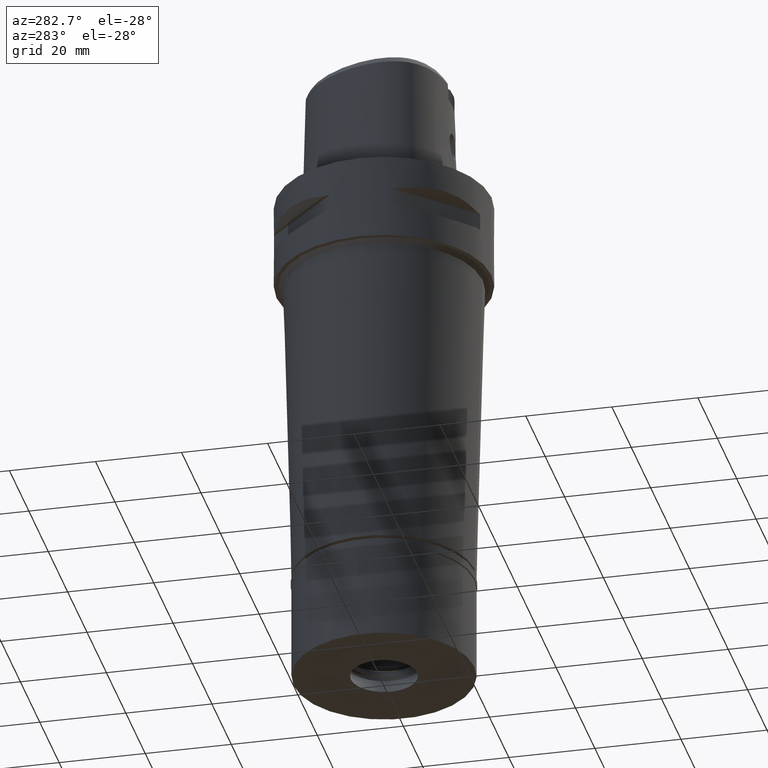
[diagram: clean part render]
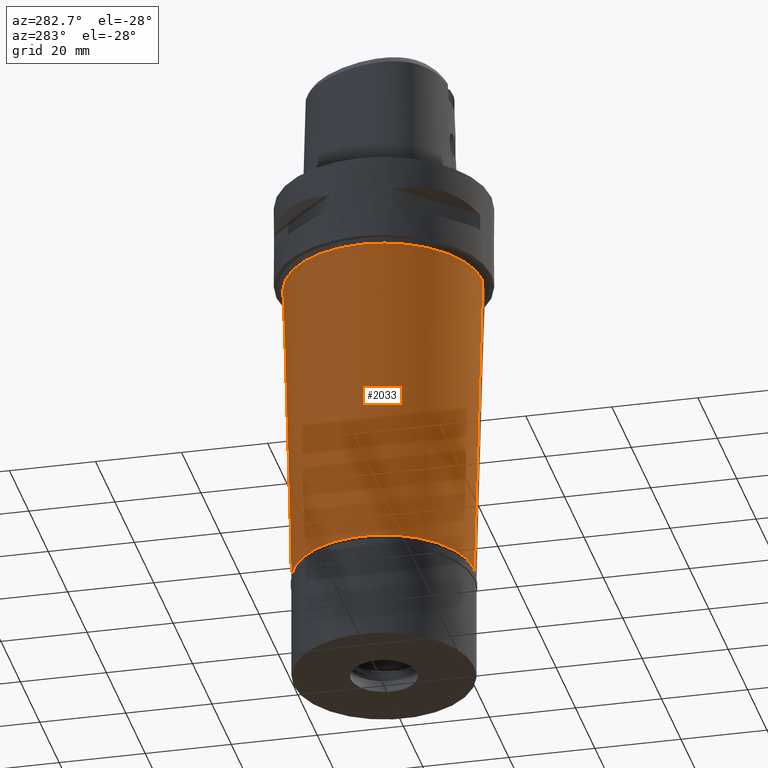
[diagram: same view with one face highlighted and labeled with its STEP entity id]
A machine part, auxiliary view. The second image highlights one B-rep face of the part: STEP entity #2033.
In plain terms, the highlighted conical surface has half-angle 1.5 deg.
Its self-contained STEP definition (entity closure, byte-faithful):
#155 = VECTOR ( 'NONE', #1964, 1000.000000000000000 ) ;
#220 = DIRECTION ( 'NONE',  ( 0.0000000000000000000, 0.0000000000000000000, -1.000000000000000000 ) ) ;
#281 = CARTESIAN_POINT ( 'NONE',  ( 0.0000000000000000000, -22.93513960395999973, -21.00000000000000000 ) ) ;
#436 = EDGE_CURVE ( 'NONE', #1760, #4540, #1140, .T. ) ;
#578 = AXIS2_PLACEMENT_3D ( 'NONE', #3551, #4255, #911 ) ;
#911 = DIRECTION ( 'NONE',  ( 0.0000000000000000000, 1.000000000000000000, 0.0000000000000000000 ) ) ;
#959 = CARTESIAN_POINT ( 'NONE',  ( 0.0000000000000000000, 0.0000000000000000000, -21.00000000000000000 ) ) ;
#1012 = DIRECTION ( 'NONE',  ( 0.0000000000000000000, -1.000000000000000000, 0.0000000000000000000 ) ) ;
#1014 = ORIENTED_EDGE ( 'NONE', *, *, #2984, .T. ) ;
#1070 = CARTESIAN_POINT ( 'NONE',  ( 0.0000000000000000000, 21.00000000000000000, -94.89999999999999147 ) ) ;
#1077 = LINE ( 'NONE', #281, #3783 ) ;
#1140 = CIRCLE ( 'NONE', #3888, 22.93513960395999973 ) ;
#1209 = DIRECTION ( 'NONE',  ( 0.0000000000000000000, 1.000000000000000000, 0.0000000000000000000 ) ) ;
#1407 = ORIENTED_EDGE ( 'NONE', *, *, #436, .T. ) ;
#1571 = CARTESIAN_POINT ( 'NONE',  ( 0.0000000000000000000, 22.93513960395999973, -21.00000000000000000 ) ) ;
#1760 = VERTEX_POINT ( 'NONE', #4112 ) ;
#1964 = DIRECTION ( 'NONE',  ( 0.0000000000000000000, -0.02617694830785889312, -0.9996573249755577040 ) ) ;
#2033 = ADVANCED_FACE ( 'NONE', ( #3579 ), #3022, .T. ) ;
#2307 = LINE ( 'NONE', #4625, #155 ) ;
#2719 = AXIS2_PLACEMENT_3D ( 'NONE', #4555, #3084, #1209 ) ;
#2984 = EDGE_CURVE ( 'NONE', #4540, #3345, #2307, .T. ) ;
#3022 = CONICAL_SURFACE ( 'NONE', #578, 21.96756980197999809, 0.02617993877991150325 ) ;
#3084 = DIRECTION ( 'NONE',  ( 0.0000000000000000000, 0.0000000000000000000, 1.000000000000000000 ) ) ;
#3345 = VERTEX_POINT ( 'NONE', #1070 ) ;
#3551 = CARTESIAN_POINT ( 'NONE',  ( 0.0000000000000000000, 0.0000000000000000000, -57.95000000000000284 ) ) ;
#3579 = FACE_OUTER_BOUND ( 'NONE', #3621, .T. ) ;
#3621 = EDGE_LOOP ( 'NONE', ( #4070, #4098, #1407, #1014 ) ) ;
#3659 = DIRECTION ( 'NONE',  ( 0.0000000000000000000, 0.02617694830785889312, -0.9996573249755577040 ) ) ;
#3753 = EDGE_CURVE ( 'NONE', #1760, #3905, #1077, .T. ) ;
#3783 = VECTOR ( 'NONE', #3659, 1000.000000000000000 ) ;
#3888 = AXIS2_PLACEMENT_3D ( 'NONE', #959, #220, #1012 ) ;
#3905 = VERTEX_POINT ( 'NONE', #4857 ) ;
#4070 = ORIENTED_EDGE ( 'NONE', *, *, #4556, .T. ) ;
#4098 = ORIENTED_EDGE ( 'NONE', *, *, #3753, .F. ) ;
#4112 = CARTESIAN_POINT ( 'NONE',  ( 0.0000000000000000000, -22.93513960395999973, -21.00000000000000000 ) ) ;
#4255 = DIRECTION ( 'NONE',  ( 0.0000000000000000000, 0.0000000000000000000, 1.000000000000000000 ) ) ;
#4285 = CIRCLE ( 'NONE', #2719, 21.00000000000000000 ) ;
#4540 = VERTEX_POINT ( 'NONE', #1571 ) ;
#4555 = CARTESIAN_POINT ( 'NONE',  ( 0.0000000000000000000, 0.0000000000000000000, -94.89999999999999147 ) ) ;
#4556 = EDGE_CURVE ( 'NONE', #3345, #3905, #4285, .T. ) ;
#4625 = CARTESIAN_POINT ( 'NONE',  ( 0.0000000000000000000, 22.93513960395999973, -21.00000000000000000 ) ) ;
#4857 = CARTESIAN_POINT ( 'NONE',  ( 0.0000000000000000000, -21.00000000000000000, -94.89999999999999147 ) ) ;